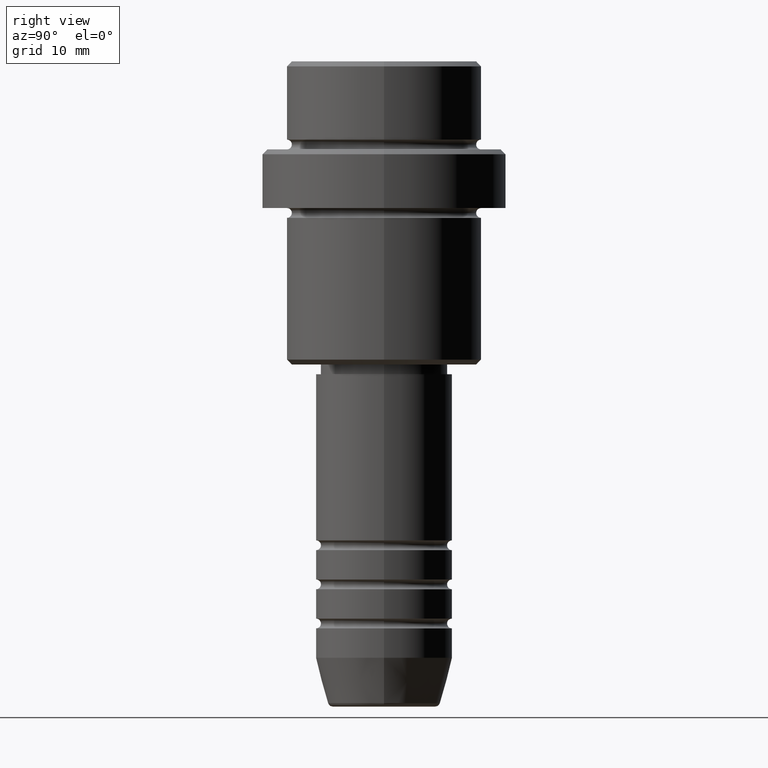
[diagram: clean part render]
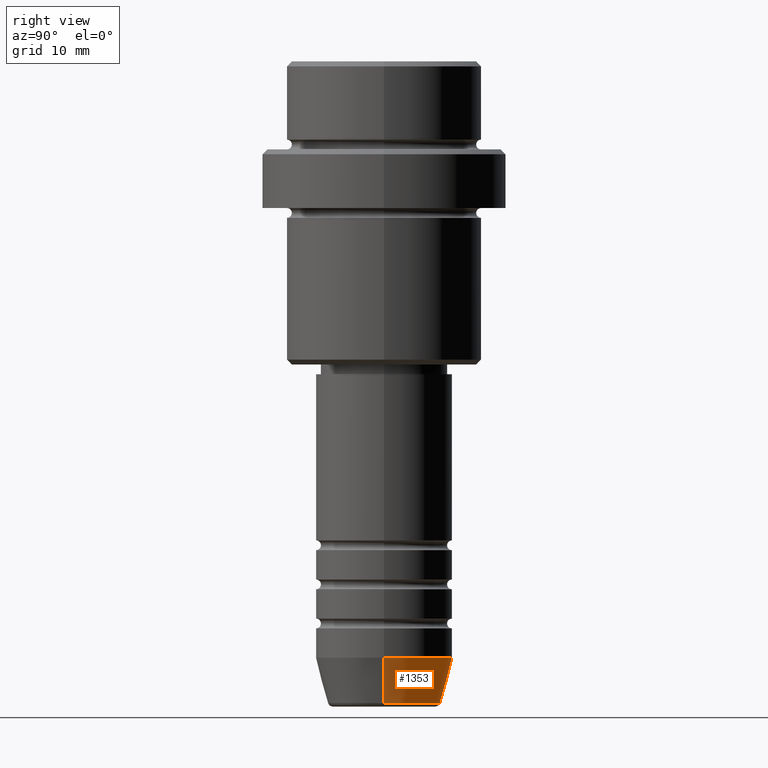
[diagram: same view with one face highlighted and labeled with its STEP entity id]
A machine part, right view. The second image highlights one B-rep face of the part: STEP entity #1353.
In plain terms, the highlighted conical surface has half-angle 15 deg.
Its self-contained STEP definition (entity closure, byte-faithful):
#29 = LINE ( 'NONE', #693, #1179 ) ;
#48 = CARTESIAN_POINT ( 'NONE',  ( 7.000000000000000000, 0.000000000000000000, -61.00000000000000711 ) ) ;
#123 = AXIS2_PLACEMENT_3D ( 'NONE', #1099, #883, #769 ) ;
#320 = ORIENTED_EDGE ( 'NONE', *, *, #1273, .F. ) ;
#330 = DIRECTION ( 'NONE',  ( -0.2588190451025213501, 3.169619151431772337E-17, 0.9659258262890680902 ) ) ;
#336 = VERTEX_POINT ( 'NONE', #48 ) ;
#391 = VERTEX_POINT ( 'NONE', #691 ) ;
#441 = ORIENTED_EDGE ( 'NONE', *, *, #531, .F. ) ;
#492 = DIRECTION ( 'NONE',  ( -0.000000000000000000, -0.000000000000000000, 1.000000000000000000 ) ) ;
#531 = EDGE_CURVE ( 'NONE', #547, #336, #29, .T. ) ;
#547 = VERTEX_POINT ( 'NONE', #1138 ) ;
#578 = DIRECTION ( 'NONE',  ( 0.2588190451025213501, 0.000000000000000000, 0.9659258262890680902 ) ) ;
#622 = EDGE_CURVE ( 'NONE', #547, #1009, #1387, .T. ) ;
#631 = ORIENTED_EDGE ( 'NONE', *, *, #1072, .T. ) ;
#691 = CARTESIAN_POINT ( 'NONE',  ( -7.000000000000000000, 8.572527594031473190E-16, -61.00000000000000711 ) ) ;
#693 = CARTESIAN_POINT ( 'NONE',  ( 7.000000000000000000, 0.000000000000000000, -61.00000000000000711 ) ) ;
#708 = FACE_OUTER_BOUND ( 'NONE', #745, .T. ) ;
#745 = EDGE_LOOP ( 'NONE', ( #899, #631, #320, #441 ) ) ;
#769 = DIRECTION ( 'NONE',  ( 1.000000000000000000, 0.000000000000000000, 0.000000000000000000 ) ) ;
#858 = VECTOR ( 'NONE', #330, 1000.000000000000000 ) ;
#883 = DIRECTION ( 'NONE',  ( -0.000000000000000000, -0.000000000000000000, 1.000000000000000000 ) ) ;
#895 = DIRECTION ( 'NONE',  ( 1.000000000000000000, 0.000000000000000000, 0.000000000000000000 ) ) ;
#899 = ORIENTED_EDGE ( 'NONE', *, *, #622, .T. ) ;
#1009 = VERTEX_POINT ( 'NONE', #1292 ) ;
#1056 = CIRCLE ( 'NONE', #1070, 7.000000000000000000 ) ;
#1070 = AXIS2_PLACEMENT_3D ( 'NONE', #1240, #1114, #895 ) ;
#1072 = EDGE_CURVE ( 'NONE', #1009, #391, #1212, .T. ) ;
#1076 = CARTESIAN_POINT ( 'NONE',  ( -7.000000000000000000, 8.572527594031473190E-16, -61.00000000000000711 ) ) ;
#1079 = CARTESIAN_POINT ( 'NONE',  ( 0.000000000000000000, 0.000000000000000000, -61.00000000000000711 ) ) ;
#1099 = CARTESIAN_POINT ( 'NONE',  ( 0.000000000000000000, 0.000000000000000000, -65.62940952255127058 ) ) ;
#1114 = DIRECTION ( 'NONE',  ( -0.000000000000000000, -0.000000000000000000, 1.000000000000000000 ) ) ;
#1138 = CARTESIAN_POINT ( 'NONE',  ( 5.759553456999435994, 0.000000000000000000, -65.62940952255127058 ) ) ;
#1142 = CONICAL_SURFACE ( 'NONE', #1186, 7.000000000000000000, 0.2617993877991500740 ) ;
#1179 = VECTOR ( 'NONE', #578, 1000.000000000000000 ) ;
#1186 = AXIS2_PLACEMENT_3D ( 'NONE', #1079, #492, #1271 ) ;
#1212 = LINE ( 'NONE', #1076, #858 ) ;
#1240 = CARTESIAN_POINT ( 'NONE',  ( 0.000000000000000000, 0.000000000000000000, -61.00000000000000711 ) ) ;
#1271 = DIRECTION ( 'NONE',  ( 1.000000000000000000, 0.000000000000000000, 0.000000000000000000 ) ) ;
#1273 = EDGE_CURVE ( 'NONE', #336, #391, #1056, .T. ) ;
#1292 = CARTESIAN_POINT ( 'NONE',  ( -5.759553456999435994, 7.812973149831952759E-16, -65.62940952255127058 ) ) ;
#1353 = ADVANCED_FACE ( 'NONE', ( #708 ), #1142, .T. ) ;
#1387 = CIRCLE ( 'NONE', #123, 5.759553456999435994 ) ;